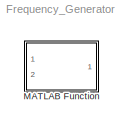
MODEL Frequency_Generator
KIND model
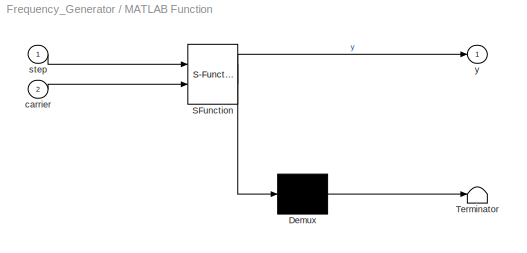
BLOCK [SubSystem] MATLAB Function
  ErrorFcn = Stateflow.Translate.translate
  PermitHierarchicalResolution = ExplicitOnly
  Ports = [2, 1]
  RequestExecContextInheritance = off
  SFBlockType = MATLAB Function
  SID = 1
  TreatAsAtomicUnit = on
  Variant = off
BLOCK [Demux] MATLAB Function/ Demux 
  Outputs = 1
  Ports = [1, 1]
  SID = 1::20
BLOCK [S-Function] MATLAB Function/ SFunction 
  EnableBusSupport = off
  FunctionName = sf_sfun
  PortCounts = [2 2]
  Ports = [2, 2]
  SFcnIsStateOwnerBlock = off
  SFunctionDeploymentMode = off
  SID = 1::19
  Tag = Stateflow S-Function Frequency_Generator 2
BLOCK [Terminator] MATLAB Function/ Terminator 
  SID = 1::21
BLOCK [Inport] MATLAB Function/carrier
  IconDisplay = Port number
  Port = 2
  SID = 1::22
BLOCK [Inport] MATLAB Function/step
  IconDisplay = Port number
  SID = 1::1
BLOCK [Outport] MATLAB Function/y
  IconDisplay = Port number
  SID = 1::5
LINE MATLAB Function/ Demux :1 -> MATLAB Function/ Terminator :1
LINE MATLAB Function/ SFunction :1 -> MATLAB Function/ Demux :1
LINE MATLAB Function/ SFunction :2 -> MATLAB Function/y:1
LINE MATLAB Function/carrier:1 -> MATLAB Function/ SFunction :2
LINE MATLAB Function/step:1 -> MATLAB Function/ SFunction :1
CHART MATLAB Function states=1 transitions=1
  STATE_LABEL 'eML_blk_kernel()'
